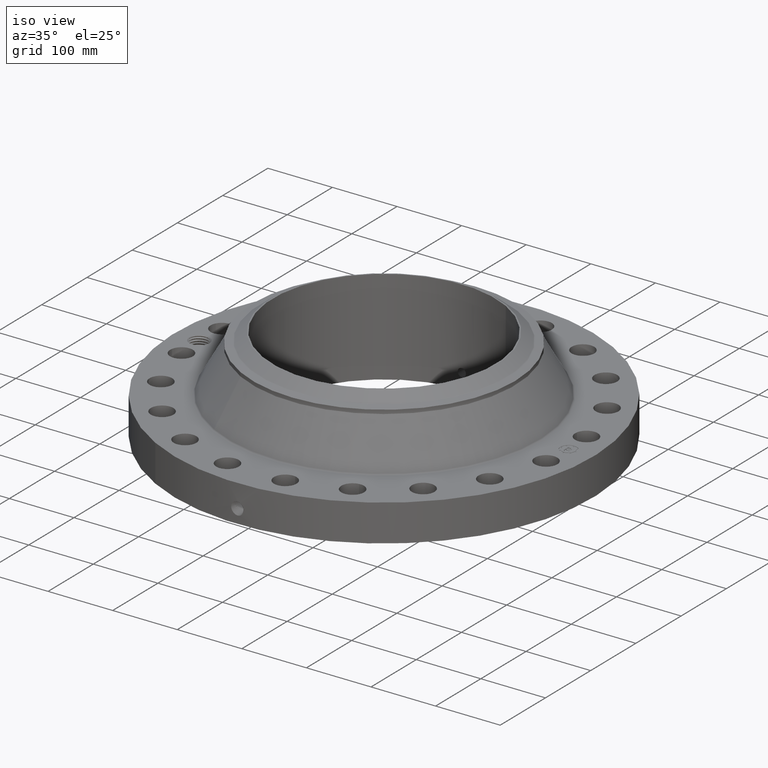
[diagram: clean part render]
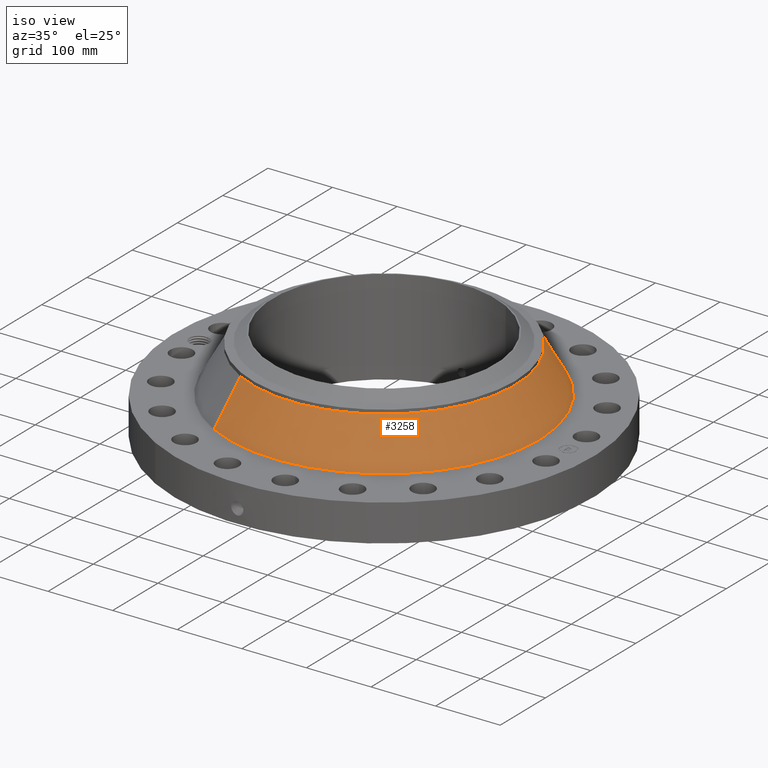
[diagram: same view with one face highlighted and labeled with its STEP entity id]
A machine part, iso view. The second image highlights one B-rep face of the part: STEP entity #3258.
In plain terms, the highlighted conical surface has half-angle 29.353 deg.
Its self-contained STEP definition (entity closure, byte-faithful):
#2583=AXIS2_PLACEMENT_3D('Circle Axis2P3D',#2581,#2582,$) ;
#3231=AXIS2_PLACEMENT_3D('Cone Axis2P3D',#3228,#3229,#3230) ;
#3242=AXIS2_PLACEMENT_3D('Circle Axis2P3D',#3240,#3241,$) ;
#2578=CARTESIAN_POINT('Vertex',(4.5380476851,8.30684056811,2.37117708172)) ;
#2581=CARTESIAN_POINT('Axis2P3D Location',(0.,0.,2.37117708172)) ;
#2585=CARTESIAN_POINT('Vertex',(-4.5380476851,-8.30684056811,2.37117708172)) ;
#3228=CARTESIAN_POINT('Axis2P3D Location',(0.,0.,4.97716976636)) ;
#3233=CARTESIAN_POINT('Line Origine',(4.18672599697,7.66375053163,3.67417342404)) ;
#3237=CARTESIAN_POINT('Vertex',(3.83540430885,7.02066049515,4.97716976636)) ;
#3240=CARTESIAN_POINT('Axis2P3D Location',(0.,0.,4.97716976636)) ;
#3244=CARTESIAN_POINT('Vertex',(-3.83540430885,-7.02066049515,4.97716976636)) ;
#3247=CARTESIAN_POINT('Line Origine',(-4.18672599697,-7.66375053163,3.67417342404)) ;
#2582=DIRECTION('Axis2P3D Direction',(0.,0.,-0.0393700787402)) ;
#3229=DIRECTION('Axis2P3D Direction',(0.,0.,-0.0393700787402)) ;
#3230=DIRECTION('Axis2P3D XDirection',(-0.0188750212049,-0.0345504945626,0.)) ;
#3234=DIRECTION('Vector Direction',(0.00925236524986,0.0169363409867,-0.0343155531978)) ;
#3241=DIRECTION('Axis2P3D Direction',(0.,0.,-0.0393700787402)) ;
#3248=DIRECTION('Vector Direction',(-0.00925236524986,-0.0169363409867,-0.0343155531978)) ;
#3235=VECTOR('Line Direction',#3234,0.0393700787402) ;
#3249=VECTOR('Line Direction',#3248,0.0393700787402) ;
#3253=ORIENTED_EDGE('',*,*,#2587,.F.) ;
#3254=ORIENTED_EDGE('',*,*,#3239,.T.) ;
#3255=ORIENTED_EDGE('',*,*,#3246,.T.) ;
#3256=ORIENTED_EDGE('',*,*,#3251,.F.) ;
#3258=ADVANCED_FACE('PartBody',(#3257),#3232,.T.) ;
#2584=CIRCLE('generated circle',#2583,9.46559438262) ;
#3243=CIRCLE('generated circle',#3242,8.00000000003) ;
#3232=CONICAL_SURFACE('Cone',#3231,8.00000000003,0.512308856485) ;
#2587=EDGE_CURVE('',#2579,#2586,#2584,.T.) ;
#3239=EDGE_CURVE('',#2579,#3238,#3236,.F.) ;
#3246=EDGE_CURVE('',#3238,#3245,#3243,.T.) ;
#3251=EDGE_CURVE('',#2586,#3245,#3250,.F.) ;
#3252=EDGE_LOOP('',(#3253,#3254,#3255,#3256)) ;
#3257=FACE_OUTER_BOUND('',#3252,.T.) ;
#3236=LINE('Line',#3233,#3235) ;
#3250=LINE('Line',#3247,#3249) ;
#2579=VERTEX_POINT('',#2578) ;
#2586=VERTEX_POINT('',#2585) ;
#3238=VERTEX_POINT('',#3237) ;
#3245=VERTEX_POINT('',#3244) ;